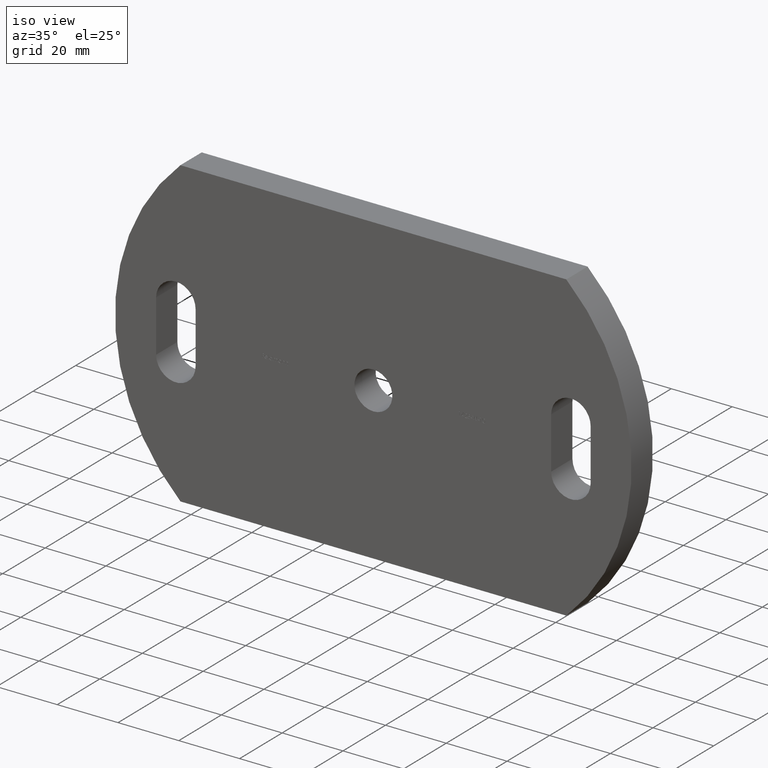
[diagram: clean part render]
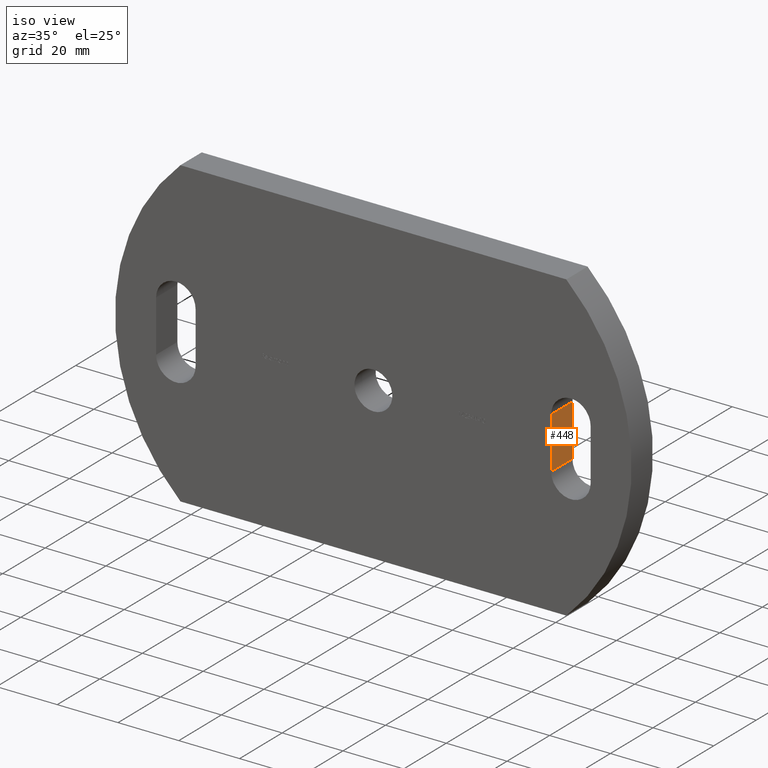
[diagram: same view with one face highlighted and labeled with its STEP entity id]
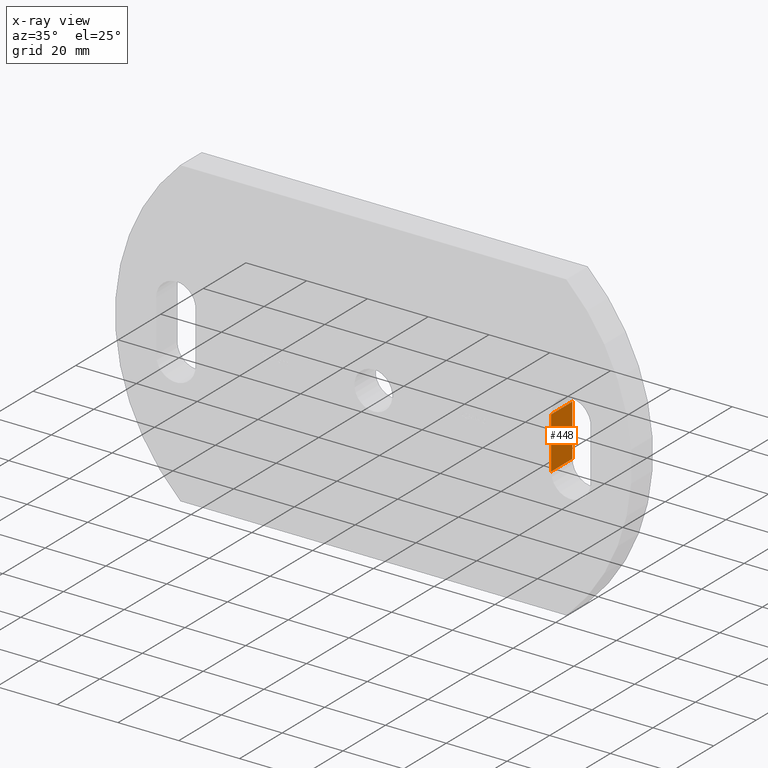
[diagram: x-ray of the same camera — body ghosted, the highlighted face saturated]
A machine part, iso view. The second image highlights one B-rep face of the part: STEP entity #448.
The next image is the same camera in x-ray: the body ghosted, the highlighted face saturated — about 0% of this face is hidden behind the body in this view.
In plain terms, the highlighted planar face has unit normal (-1, 0, 0).
Its self-contained STEP definition (entity closure, byte-faithful):
#448 = ADVANCED_FACE ( 'NONE', ( #6541 ), #9595, .F. ) ;
#775 = VERTEX_POINT ( 'NONE', #5575 ) ;
#943 = CARTESIAN_POINT ( 'NONE',  ( 58.50000000000000000, 0.0000000000000000000, 8.500000000000008900 ) ) ;
#1212 = ORIENTED_EDGE ( 'NONE', *, *, #2670, .F. ) ;
#1320 = CARTESIAN_POINT ( 'NONE',  ( 58.49999999999998600, 0.0000000000000000000, -8.500000000000008900 ) ) ;
#1349 = CARTESIAN_POINT ( 'NONE',  ( 58.49999999999998600, 10.00000000000000000, -8.500000000000008900 ) ) ;
#1395 = DIRECTION ( 'NONE',  ( -1.000000000000000000, 0.0000000000000000000, 0.0000000000000000000 ) ) ;
#1434 = VECTOR ( 'NONE', #8743, 1000.000000000000000 ) ;
#1538 = VECTOR ( 'NONE', #10096, 1000.000000000000000 ) ;
#1573 = VECTOR ( 'NONE', #3171, 1000.000000000000000 ) ;
#2341 = EDGE_CURVE ( 'NONE', #9878, #775, #2593, .T. ) ;
#2593 = LINE ( 'NONE', #1349, #1434 ) ;
#2670 = EDGE_CURVE ( 'NONE', #7416, #775, #8710, .T. ) ;
#2697 = CARTESIAN_POINT ( 'NONE',  ( 58.49999999999998600, 10.00000000000000000, -8.500000000000008900 ) ) ;
#2895 = EDGE_LOOP ( 'NONE', ( #10132, #1212, #5215, #8947 ) ) ;
#3137 = VERTEX_POINT ( 'NONE', #4289 ) ;
#3171 = DIRECTION ( 'NONE',  ( -0.0000000000000000000, 1.000000000000000000, -0.0000000000000000000 ) ) ;
#4222 = CARTESIAN_POINT ( 'NONE',  ( 58.49999999999998600, 0.0000000000000000000, -8.500000000000008900 ) ) ;
#4289 = CARTESIAN_POINT ( 'NONE',  ( 58.49999999999998600, 0.0000000000000000000, -8.500000000000008900 ) ) ;
#4959 = CARTESIAN_POINT ( 'NONE',  ( 58.49999999999998600, 0.0000000000000000000, -8.500000000000008900 ) ) ;
#5215 = ORIENTED_EDGE ( 'NONE', *, *, #6326, .F. ) ;
#5353 = VECTOR ( 'NONE', #10011, 1000.000000000000000 ) ;
#5575 = CARTESIAN_POINT ( 'NONE',  ( 58.50000000000000000, 10.00000000000000000, 8.500000000000008900 ) ) ;
#5758 = AXIS2_PLACEMENT_3D ( 'NONE', #1320, #1395, #6271 ) ;
#6158 = LINE ( 'NONE', #4222, #5353 ) ;
#6271 = DIRECTION ( 'NONE',  ( 0.0000000000000000000, 0.0000000000000000000, 1.000000000000000000 ) ) ;
#6326 = EDGE_CURVE ( 'NONE', #3137, #7416, #6158, .T. ) ;
#6526 = LINE ( 'NONE', #4959, #1573 ) ;
#6541 = FACE_OUTER_BOUND ( 'NONE', #2895, .T. ) ;
#7416 = VERTEX_POINT ( 'NONE', #8908 ) ;
#7969 = EDGE_CURVE ( 'NONE', #3137, #9878, #6526, .T. ) ;
#8710 = LINE ( 'NONE', #943, #1538 ) ;
#8743 = DIRECTION ( 'NONE',  ( 0.0000000000000000000, 0.0000000000000000000, 1.000000000000000000 ) ) ;
#8908 = CARTESIAN_POINT ( 'NONE',  ( 58.49999999999998600, 0.0000000000000000000, 8.500000000000008900 ) ) ;
#8947 = ORIENTED_EDGE ( 'NONE', *, *, #7969, .T. ) ;
#9595 = PLANE ( 'NONE',  #5758 ) ;
#9878 = VERTEX_POINT ( 'NONE', #2697 ) ;
#10011 = DIRECTION ( 'NONE',  ( 0.0000000000000000000, 0.0000000000000000000, 1.000000000000000000 ) ) ;
#10096 = DIRECTION ( 'NONE',  ( -0.0000000000000000000, 1.000000000000000000, -0.0000000000000000000 ) ) ;
#10132 = ORIENTED_EDGE ( 'NONE', *, *, #2341, .T. ) ;